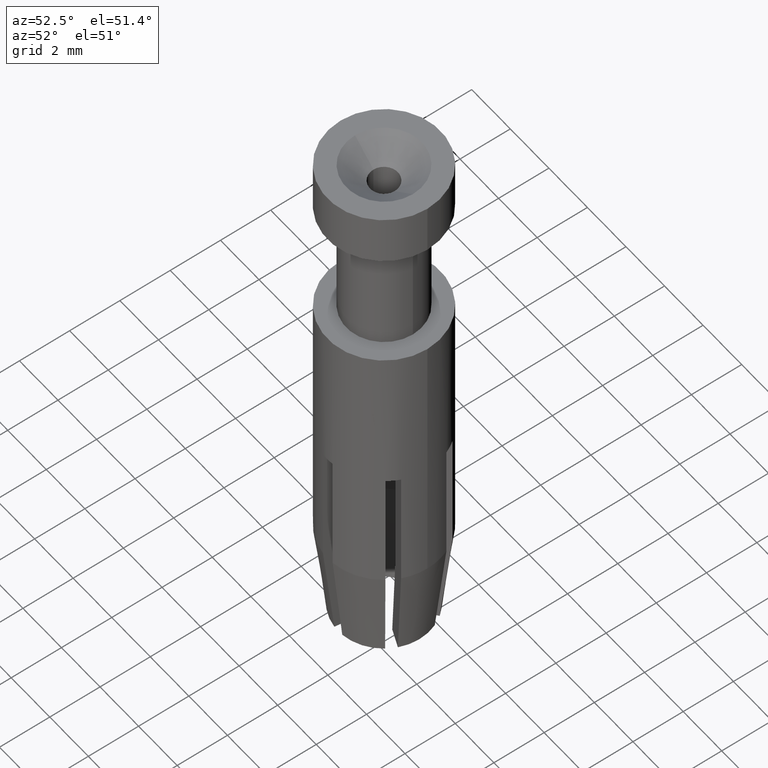
[diagram: clean part render]
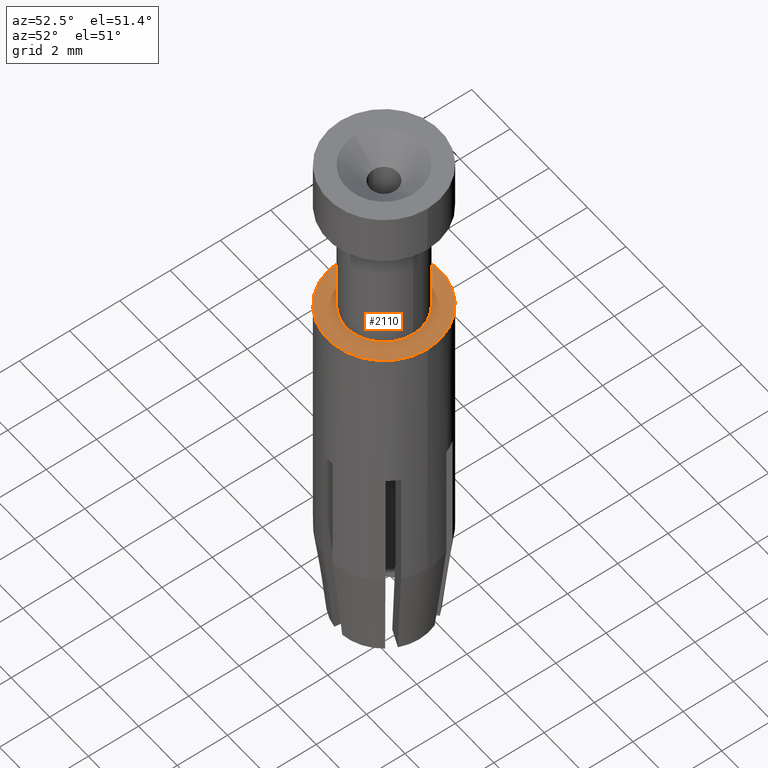
[diagram: same view with one face highlighted and labeled with its STEP entity id]
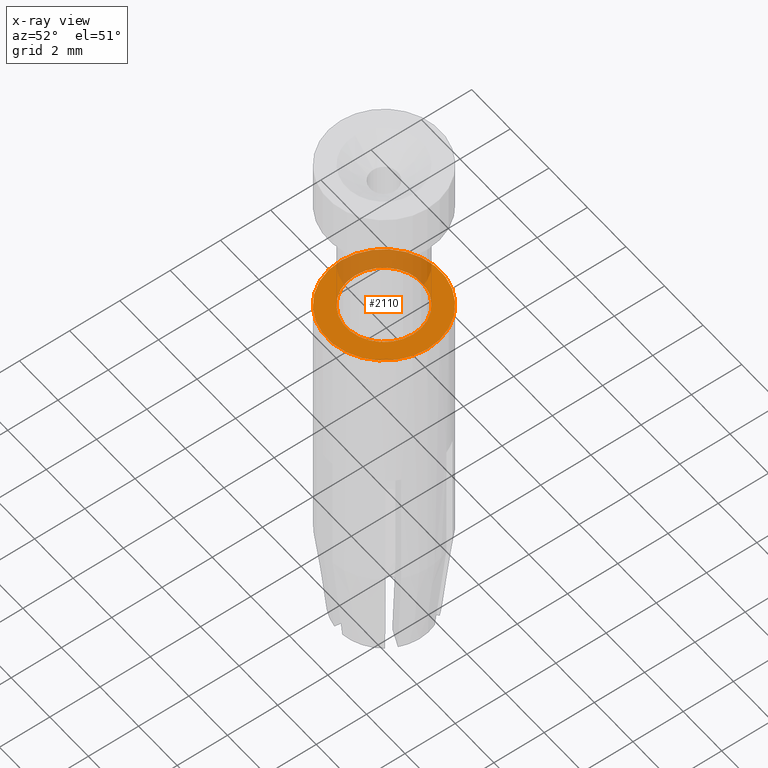
[diagram: x-ray of the same camera — body ghosted, the highlighted face saturated]
A machine part, auxiliary view. The second image highlights one B-rep face of the part: STEP entity #2110.
The next image is the same camera in x-ray: the body ghosted, the highlighted face saturated — about 27% of this face is hidden behind the body in this view.
In plain terms, the highlighted planar face has unit normal (0, -0, 1).
Its self-contained STEP definition (entity closure, byte-faithful):
#120=CARTESIAN_POINT('',(28.500556,42.17405,12.4));
#130=VERTEX_POINT('',#120);
#1160=CARTESIAN_POINT('',(33.000556,42.17405,12.4));
#1170=VERTEX_POINT('',#1160);
#1200=CARTESIAN_POINT('',(30.750556,42.17405,12.4));
#1210=DIRECTION('',(0.,0.,-1.));
#1220=DIRECTION('',(-1.,0.,0.));
#1230=AXIS2_PLACEMENT_3D('',#1200,#1210,#1220);
#1240=CIRCLE('',#1230,2.25);
#1250=EDGE_CURVE('',#1170,#130,#1240,.T.);
#1860=CARTESIAN_POINT('',(27.600556,42.17405,12.4));
#1870=DIRECTION('',(0.,0.,-1.));
#1880=DIRECTION('',(-1.,0.,0.));
#1890=AXIS2_PLACEMENT_3D('',#1860,#1870,#1880);
#1900=PLANE('',#1890);
#1910=CARTESIAN_POINT('',(30.750556,42.17405,12.4));
#1920=DIRECTION('',(0.,0.,1.));
#1930=DIRECTION('',(-1.,0.,0.));
#1940=AXIS2_PLACEMENT_3D('',#1910,#1920,#1930);
#1950=CIRCLE('',#1940,1.5);
#1960=CARTESIAN_POINT('',(32.250556,42.17405,12.4));
#1970=VERTEX_POINT('',#1960);
#1980=CARTESIAN_POINT('',(29.250556,42.17405,12.4));
#1990=VERTEX_POINT('',#1980);
#2000=EDGE_CURVE('',#1970,#1990,#1950,.T.);
#2010=ORIENTED_EDGE('',*,*,#2000,.T.);
#2020=EDGE_CURVE('',#1990,#1970,#1950,.T.);
#2030=ORIENTED_EDGE('',*,*,#2020,.T.);
#2040=EDGE_LOOP('',(#2030,#2010));
#2050=FACE_BOUND('',#2040,.T.);
#2060=EDGE_CURVE('',#130,#1170,#1240,.T.);
#2070=ORIENTED_EDGE('',*,*,#2060,.T.);
#2080=ORIENTED_EDGE('',*,*,#1250,.T.);
#2090=EDGE_LOOP('',(#2080,#2070));
#2100=FACE_OUTER_BOUND('',#2090,.T.);
#2110=ADVANCED_FACE('',(#2050,#2100),#1900,.T.);